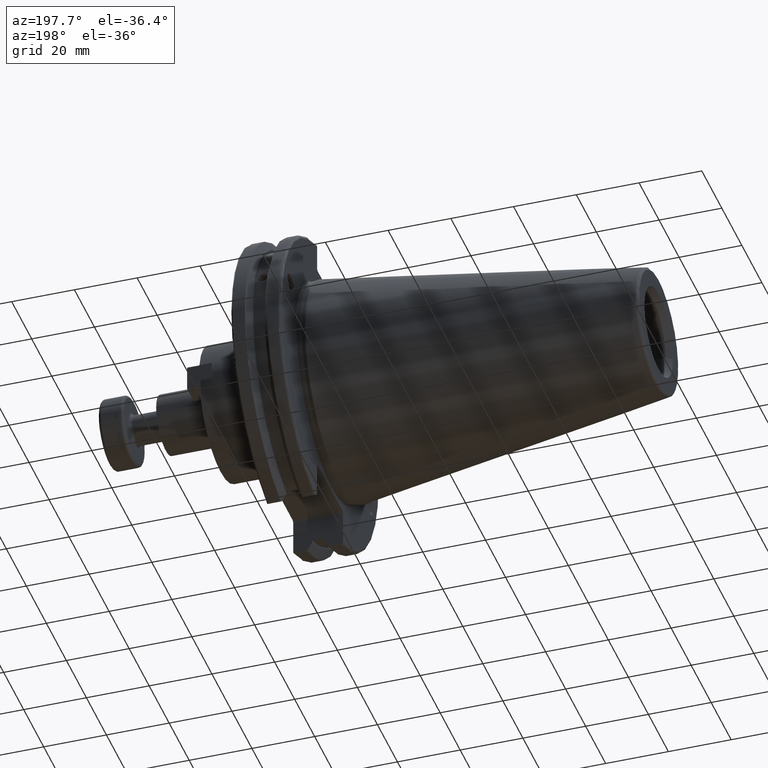
[diagram: clean part render]
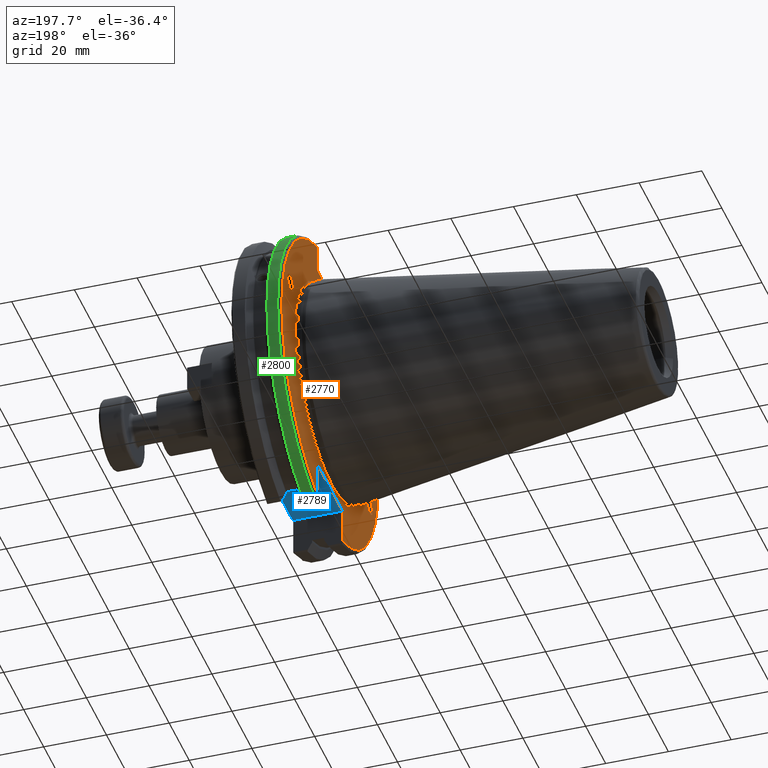
[diagram: same view with three faces highlighted in distinct colors, each labeled with its STEP entity id]
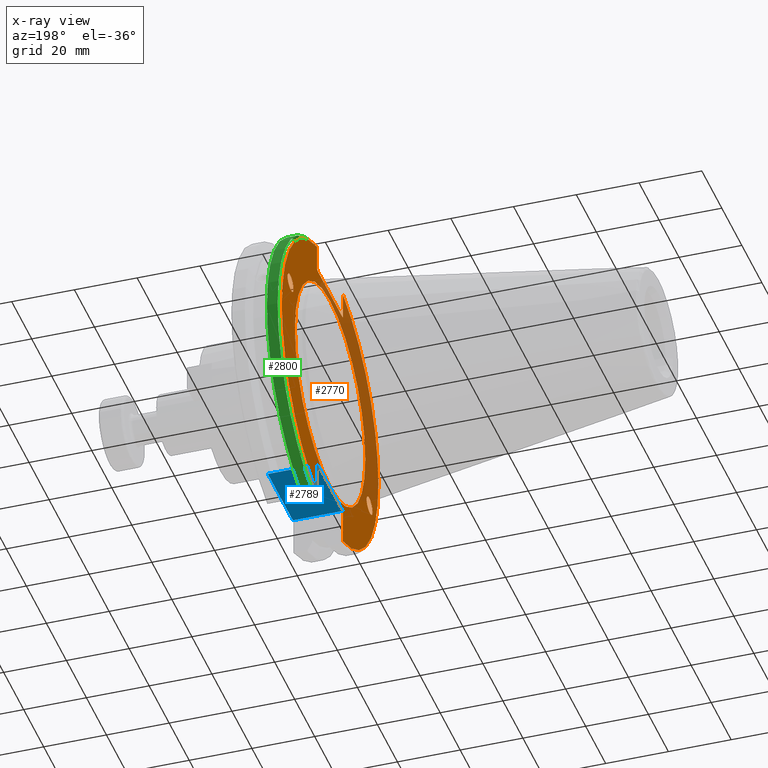
[diagram: x-ray of the same camera — body ghosted, the three highlighted faces saturated]
A machine part, auxiliary view with three faces highlighted in distinct colors.
The next image is the same camera in x-ray (body ghosted, the three faces saturated) — at least one of them is partly hidden behind the body in this view.
Their STEP definitions:

[orange] entity #2770 — the highlighted planar face has unit normal (-1, 0, 0).
#480=ELLIPSE('',#3081,3.05193647190364,2.5);
#481=ELLIPSE('',#3117,3.05193647190364,2.5);
#586=FACE_BOUND('',#937,.T.);
#587=FACE_BOUND('',#938,.T.);
#588=FACE_BOUND('',#939,.T.);
#649=CIRCLE('',#3121,35.125);
#651=CIRCLE('',#3124,48.2125);
#652=CIRCLE('',#3125,48.2125);
#782=FACE_OUTER_BOUND('',#936,.T.);
#936=EDGE_LOOP('',(#2187,#2188,#2189,#2190,#2191,#2192,#2193,#2194,#2195,
#2196,#2197,#2198));
#937=EDGE_LOOP('',(#2199));
#938=EDGE_LOOP('',(#2200));
#939=EDGE_LOOP('',(#2201));
#1097=LINE('',#4759,#1265);
#1098=LINE('',#4761,#1266);
#1099=LINE('',#4763,#1267);
#1100=LINE('',#4765,#1268);
#1101=LINE('',#4767,#1269);
#1102=LINE('',#4771,#1270);
#1103=LINE('',#4773,#1271);
#1104=LINE('',#4775,#1272);
#1105=LINE('',#4777,#1273);
#1106=LINE('',#4778,#1274);
#1265=VECTOR('',#3615,10.);
#1266=VECTOR('',#3616,10.);
#1267=VECTOR('',#3617,10.);
#1268=VECTOR('',#3618,10.);
#1269=VECTOR('',#3619,10.);
#1270=VECTOR('',#3622,10.);
#1271=VECTOR('',#3623,10.);
#1272=VECTOR('',#3624,10.);
#1273=VECTOR('',#3625,10.);
#1274=VECTOR('',#3626,10.);
#1433=VERTEX_POINT('',#4479);
#1473=VERTEX_POINT('',#4743);
#1476=VERTEX_POINT('',#4750);
#1477=VERTEX_POINT('',#4755);
#1478=VERTEX_POINT('',#4756);
#1479=VERTEX_POINT('',#4758);
#1480=VERTEX_POINT('',#4760);
#1481=VERTEX_POINT('',#4762);
#1482=VERTEX_POINT('',#4764);
#1483=VERTEX_POINT('',#4766);
#1484=VERTEX_POINT('',#4768);
#1485=VERTEX_POINT('',#4770);
#1486=VERTEX_POINT('',#4772);
#1487=VERTEX_POINT('',#4774);
#1488=VERTEX_POINT('',#4776);
#1686=EDGE_CURVE('',#1433,#1433,#480,.T.);
#1739=EDGE_CURVE('',#1473,#1473,#481,.T.);
#1742=EDGE_CURVE('',#1476,#1476,#649,.T.);
#1744=EDGE_CURVE('',#1477,#1478,#651,.T.);
#1745=EDGE_CURVE('',#1477,#1479,#1097,.T.);
#1746=EDGE_CURVE('',#1480,#1479,#1098,.T.);
#1747=EDGE_CURVE('',#1480,#1481,#1099,.T.);
#1748=EDGE_CURVE('',#1482,#1481,#1100,.T.);
#1749=EDGE_CURVE('',#1482,#1483,#1101,.T.);
#1750=EDGE_CURVE('',#1484,#1483,#652,.T.);
#1751=EDGE_CURVE('',#1484,#1485,#1102,.T.);
#1752=EDGE_CURVE('',#1486,#1485,#1103,.T.);
#1753=EDGE_CURVE('',#1486,#1487,#1104,.T.);
#1754=EDGE_CURVE('',#1488,#1487,#1105,.T.);
#1755=EDGE_CURVE('',#1488,#1478,#1106,.T.);
#2187=ORIENTED_EDGE('',*,*,#1744,.F.);
#2188=ORIENTED_EDGE('',*,*,#1745,.T.);
#2189=ORIENTED_EDGE('',*,*,#1746,.F.);
#2190=ORIENTED_EDGE('',*,*,#1747,.T.);
#2191=ORIENTED_EDGE('',*,*,#1748,.F.);
#2192=ORIENTED_EDGE('',*,*,#1749,.T.);
#2193=ORIENTED_EDGE('',*,*,#1750,.F.);
#2194=ORIENTED_EDGE('',*,*,#1751,.T.);
#2195=ORIENTED_EDGE('',*,*,#1752,.F.);
#2196=ORIENTED_EDGE('',*,*,#1753,.T.);
#2197=ORIENTED_EDGE('',*,*,#1754,.F.);
#2198=ORIENTED_EDGE('',*,*,#1755,.T.);
#2199=ORIENTED_EDGE('',*,*,#1686,.T.);
#2200=ORIENTED_EDGE('',*,*,#1739,.T.);
#2201=ORIENTED_EDGE('',*,*,#1742,.F.);
#2666=PLANE('',#3123);
#2770=ADVANCED_FACE('',(#782,#586,#587,#588),#2666,.T.);
#3081=AXIS2_PLACEMENT_3D('',#4481,#3510,#3511);
#3117=AXIS2_PLACEMENT_3D('',#4745,#3599,#3600);
#3121=AXIS2_PLACEMENT_3D('',#4752,#3607,#3608);
#3123=AXIS2_PLACEMENT_3D('',#4754,#3611,#3612);
#3124=AXIS2_PLACEMENT_3D('',#4757,#3613,#3614);
#3125=AXIS2_PLACEMENT_3D('',#4769,#3620,#3621);
#3510=DIRECTION('center_axis',(1.,0.,0.));
#3511=DIRECTION('ref_axis',(0.,-0.939692620785908,-0.342020143325668));
#3599=DIRECTION('center_axis',(1.,0.,0.));
#3600=DIRECTION('ref_axis',(0.,0.939692620785908,0.342020143325669));
#3607=DIRECTION('center_axis',(-1.,0.,0.));
#3608=DIRECTION('ref_axis',(0.,-1.,1.83697019872103E-16));
#3611=DIRECTION('center_axis',(-1.,0.,0.));
#3612=DIRECTION('ref_axis',(0.,0.,1.));
#3613=DIRECTION('center_axis',(1.,0.,0.));
#3614=DIRECTION('ref_axis',(0.,-1.,1.60812264967664E-16));
#3615=DIRECTION('',(0.,0.,-1.));
#3616=DIRECTION('',(0.,-0.707106781186549,0.707106781186546));
#3617=DIRECTION('',(0.,1.,0.));
#3618=DIRECTION('',(0.,-0.707106781186549,-0.707106781186546));
#3619=DIRECTION('',(0.,0.,1.));
#3620=DIRECTION('center_axis',(1.,0.,0.));
#3621=DIRECTION('ref_axis',(0.,1.,-6.12323399573677E-17));
#3622=DIRECTION('',(0.,0.,1.));
#3623=DIRECTION('',(0.,0.707106781186549,-0.707106781186546));
#3624=DIRECTION('',(0.,-1.,0.));
#3625=DIRECTION('',(0.,0.707106781186549,0.707106781186546));
#3626=DIRECTION('',(0.,0.,-1.));
#4479=CARTESIAN_POINT('',(3.175,-36.5992078912529,-13.3210222701368));
#4481=CARTESIAN_POINT('Origin',(3.175,-39.4670900730082,-14.3648460196781));
#4743=CARTESIAN_POINT('',(3.175,36.5992078912529,13.3210222701368));
#4745=CARTESIAN_POINT('Origin',(3.175,39.4670900730082,14.3648460196781));
#4750=CARTESIAN_POINT('',(3.175,-4.30157188200508E-15,35.125));
#4752=CARTESIAN_POINT('Origin',(3.175,0.,0.));
#4754=CARTESIAN_POINT('Origin',(3.175,49.2125,0.));
#4755=CARTESIAN_POINT('',(3.175,-12.95,46.4407434937254));
#4756=CARTESIAN_POINT('',(3.175,-12.95,-46.4407434937254));
#4757=CARTESIAN_POINT('Origin',(3.175,0.,0.));
#4758=CARTESIAN_POINT('',(3.175,-12.95,38.219));
#4759=CARTESIAN_POINT('',(3.175,-12.95,18.8595));
#4760=CARTESIAN_POINT('',(3.175,-12.45,37.719));
#4761=CARTESIAN_POINT('',(3.175,12.2703750000001,12.998625));
#4762=CARTESIAN_POINT('',(3.175,12.45,37.719));
#4763=CARTESIAN_POINT('',(3.175,24.60625,37.719));
#4764=CARTESIAN_POINT('',(3.175,12.95,38.219));
#4765=CARTESIAN_POINT('',(3.175,12.335875,37.604875));
#4766=CARTESIAN_POINT('',(3.175,12.95,46.4407434937254));
#4767=CARTESIAN_POINT('',(3.175,12.95,18.8595));
#4768=CARTESIAN_POINT('',(3.175,12.95,-46.4407434937254));
#4769=CARTESIAN_POINT('Origin',(3.175,0.,0.));
#4770=CARTESIAN_POINT('',(3.175,12.95,-35.806));
#4771=CARTESIAN_POINT('',(3.175,12.95,-17.653));
#4772=CARTESIAN_POINT('',(3.175,12.45,-35.306));
#4773=CARTESIAN_POINT('',(3.175,12.939125,-35.795125));
#4774=CARTESIAN_POINT('',(3.175,-12.45,-35.306));
#4775=CARTESIAN_POINT('',(3.175,24.60625,-35.306));
#4776=CARTESIAN_POINT('',(3.175,-12.95,-35.806));
#4777=CARTESIAN_POINT('',(3.175,11.6671250000001,-11.188875));
#4778=CARTESIAN_POINT('',(3.175,-12.95,-17.653));

[blue] entity #2789 — the highlighted planar face has unit normal (0, 0, 1).
#801=FACE_OUTER_BOUND('',#960,.T.);
#960=EDGE_LOOP('',(#2316,#2317,#2318,#2319));
#1104=LINE('',#4775,#1272);
#1118=LINE('',#4851,#1286);
#1139=LINE('',#5016,#1307);
#1140=LINE('',#5018,#1308);
#1272=VECTOR('',#3624,10.);
#1286=VECTOR('',#3654,10.);
#1307=VECTOR('',#3723,10.);
#1308=VECTOR('',#3726,10.);
#1486=VERTEX_POINT('',#4772);
#1487=VERTEX_POINT('',#4774);
#1503=VERTEX_POINT('',#4848);
#1504=VERTEX_POINT('',#4850);
#1753=EDGE_CURVE('',#1486,#1487,#1104,.T.);
#1776=EDGE_CURVE('',#1503,#1504,#1118,.T.);
#1823=EDGE_CURVE('',#1504,#1486,#1139,.T.);
#1824=EDGE_CURVE('',#1487,#1503,#1140,.T.);
#2316=ORIENTED_EDGE('',*,*,#1823,.F.);
#2317=ORIENTED_EDGE('',*,*,#1776,.F.);
#2318=ORIENTED_EDGE('',*,*,#1824,.F.);
#2319=ORIENTED_EDGE('',*,*,#1753,.F.);
#2677=PLANE('',#3158);
#2789=ADVANCED_FACE('',(#801),#2677,.F.);
#3158=AXIS2_PLACEMENT_3D('',#5017,#3724,#3725);
#3624=DIRECTION('',(0.,-1.,0.));
#3654=DIRECTION('',(0.,1.,0.));
#3723=DIRECTION('',(-1.,2.63163976207444E-16,0.));
#3724=DIRECTION('center_axis',(0.,0.,1.));
#3725=DIRECTION('ref_axis',(1.,0.,0.));
#3726=DIRECTION('',(1.,2.63163976207445E-16,0.));
#4772=CARTESIAN_POINT('',(3.175,12.45,-35.306));
#4774=CARTESIAN_POINT('',(3.175,-12.45,-35.306));
#4775=CARTESIAN_POINT('',(3.175,24.60625,-35.306));
#4848=CARTESIAN_POINT('',(19.05,-12.45,-35.306));
#4850=CARTESIAN_POINT('',(19.05,12.45,-35.306));
#4851=CARTESIAN_POINT('',(19.05,-3.33066907387547E-15,-35.306));
#5016=CARTESIAN_POINT('',(10.63125,12.45,-35.306));
#5017=CARTESIAN_POINT('Origin',(18.0875,-6.66133814775094E-15,-35.306));
#5018=CARTESIAN_POINT('',(19.06875,-12.45,-35.306));

[green] entity #2800 — the highlighted cylindrical surface (partial cylindrical patch) has radius 49.2125 mm, axis along (1, 0, 0).
#541=CYLINDRICAL_SURFACE('',#3170,49.2125);
#639=CIRCLE('',#3102,49.2125);
#660=CIRCLE('',#3146,49.2125);
#812=FACE_OUTER_BOUND('',#971,.T.);
#971=EDGE_LOOP('',(#2368,#2369,#2370,#2371));
#1137=LINE('',#4999,#1305);
#1148=LINE('',#5048,#1316);
#1305=VECTOR('',#3701,10.);
#1316=VECTOR('',#3756,10.);
#1462=VERTEX_POINT('',#4703);
#1463=VERTEX_POINT('',#4707);
#1528=VERTEX_POINT('',#4979);
#1529=VERTEX_POINT('',#4988);
#1723=EDGE_CURVE('',#1462,#1463,#639,.T.);
#1813=EDGE_CURVE('',#1528,#1529,#660,.T.);
#1815=EDGE_CURVE('',#1529,#1462,#1137,.T.);
#1836=EDGE_CURVE('',#1463,#1528,#1148,.T.);
#2368=ORIENTED_EDGE('',*,*,#1813,.F.);
#2369=ORIENTED_EDGE('',*,*,#1836,.F.);
#2370=ORIENTED_EDGE('',*,*,#1723,.F.);
#2371=ORIENTED_EDGE('',*,*,#1815,.F.);
#2800=ADVANCED_FACE('',(#812),#541,.T.);
#3102=AXIS2_PLACEMENT_3D('',#4708,#3563,#3564);
#3146=AXIS2_PLACEMENT_3D('',#4989,#3697,#3698);
#3170=AXIS2_PLACEMENT_3D('',#5049,#3757,#3758);
#3563=DIRECTION('center_axis',(1.,0.,0.));
#3564=DIRECTION('ref_axis',(0.,0.,-1.));
#3697=DIRECTION('center_axis',(-1.,0.,0.));
#3698=DIRECTION('ref_axis',(0.,1.,-6.12323399573677E-17));
#3701=DIRECTION('',(1.,0.,0.));
#3756=DIRECTION('',(-1.,0.,0.));
#3757=DIRECTION('center_axis',(1.,0.,0.));
#3758=DIRECTION('ref_axis',(0.,1.,0.));
#4703=CARTESIAN_POINT('',(7.60799096595127,13.4317035994433,-47.3440544806494));
#4707=CARTESIAN_POINT('',(7.60799096595127,13.4317035994433,47.3440544806494));
#4708=CARTESIAN_POINT('Origin',(7.60799096595127,0.,0.));
#4979=CARTESIAN_POINT('',(4.175,13.4317035994433,47.3440544806494));
#4988=CARTESIAN_POINT('',(4.175,13.4317035994433,-47.3440544806494));
#4989=CARTESIAN_POINT('Origin',(4.175,0.,0.));
#4999=CARTESIAN_POINT('',(5.39149548297563,13.4317035994433,-47.3440544806494));
#5048=CARTESIAN_POINT('',(5.39149548297563,13.4317035994433,47.3440544806494));
#5049=CARTESIAN_POINT('Origin',(5.39149548297563,0.,0.));